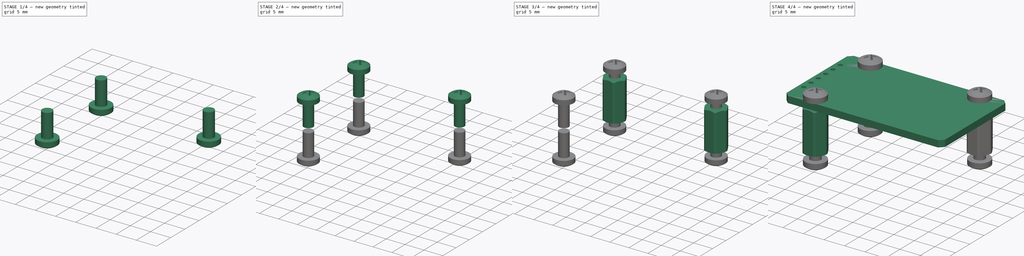
[diagram: build sequence overview — one tinted view per stage of 4, left to right]
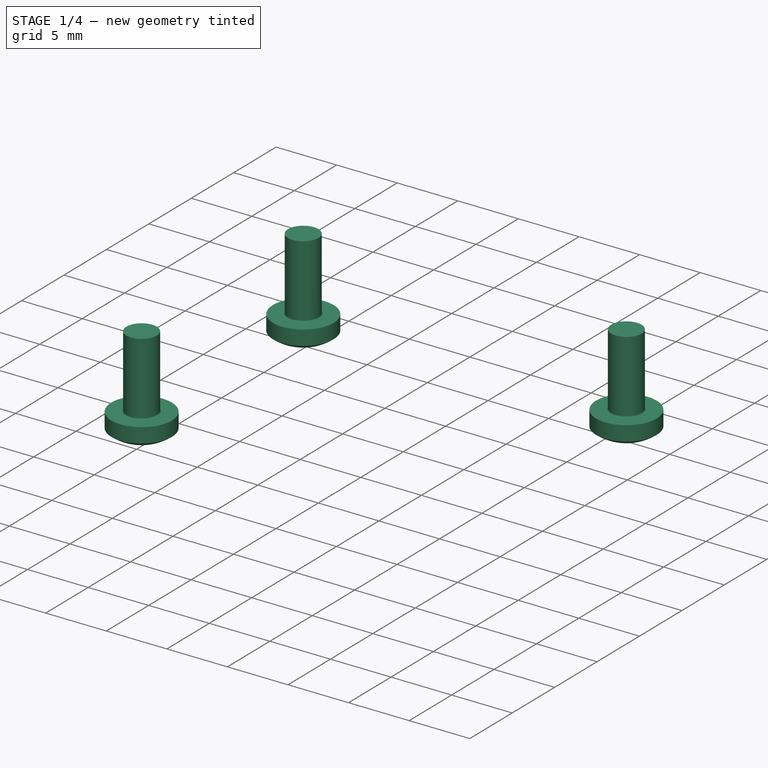
[diagram: stage 1 of 4 — iso view after this stage's code; geometry added in this stage tinted green]
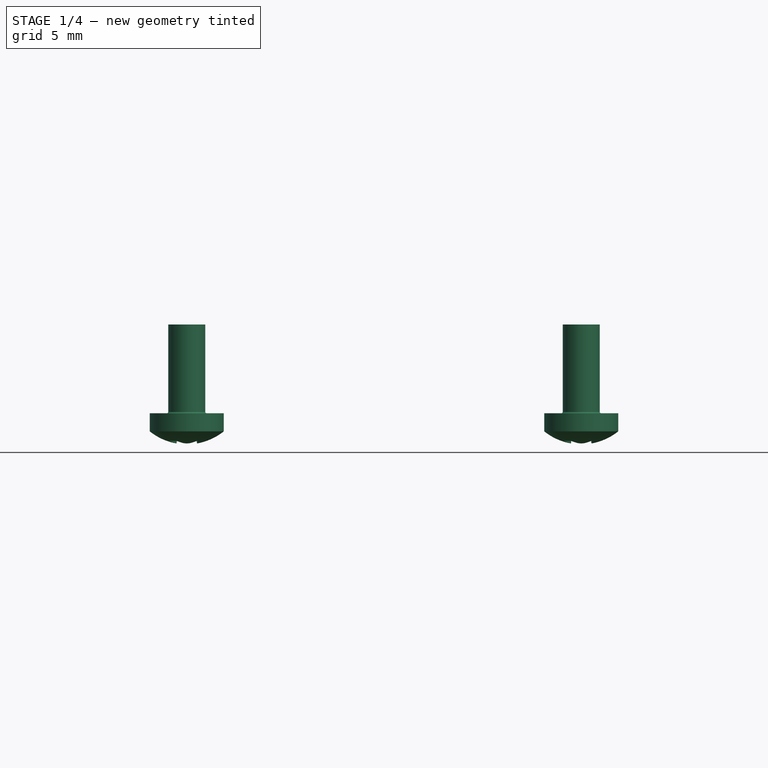
[diagram: stage 1 of 4 — front view after this stage's code; geometry added in this stage tinted green]
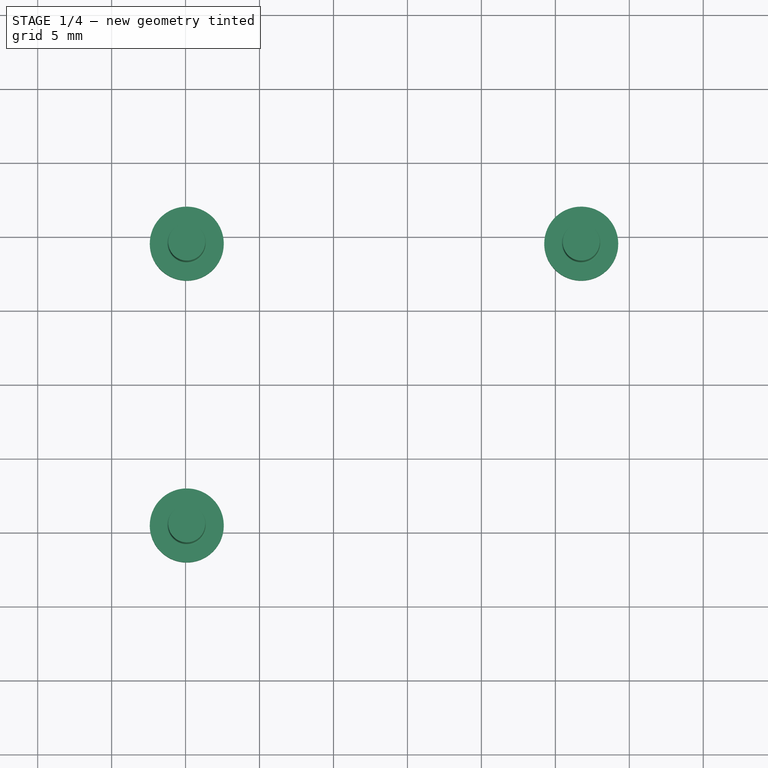
[diagram: stage 1 of 4 — top view after this stage's code; geometry added in this stage tinted green]
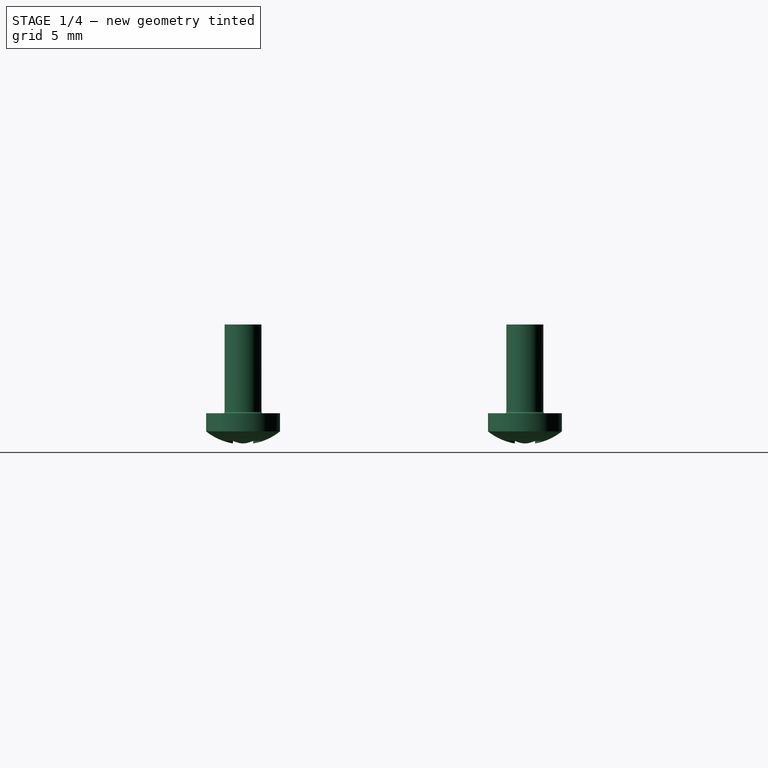
[diagram: stage 1 of 4 — right view after this stage's code; geometry added in this stage tinted green]
FCSTD DOCUMENT  (FreeCAD 0.18.4R)
Label: DS3231_module_MJ
License: All rights reserved
LicenseURL: http://en.wikipedia.org/wiki/All_rights_reserved
objects: Part::FeaturePython×9, Part::Feature×5, Sketcher::SketchObject×2, PartDesign::Pad×2, PartDesign::Body×1, App::Part×1
note: 21 computed .brp shape members not serialized (recipe doc carries the construction recipe); baked Part::Feature solids carry a one-line shape summary decoded from their .brp

FEATURE [Part::FeaturePython] Screw003  label="M2.5x6-Screw003"  # Fasteners workbench fastener (typed FeaturePython)
  Placement = pos=(5.08,-9.525,-11.6) rot=(0,1,0;3.14159rad)
  diameter = 3
  invert = false
  length = 3
  lengthCustom = 6
  matchOuter = false
  offset = 0
  thread = false
  type = 33
FEATURE [Part::FeaturePython] Screw004  label="M2.5x6-Screw006"  # Fasteners workbench fastener (typed FeaturePython)
  Placement = pos=(5.08,9.53,-11.6) rot=(0,1,0;3.14159rad)
  diameter = 3
  invert = false
  length = 3
  lengthCustom = 6
  matchOuter = false
  offset = 0
  thread = false
  type = 33
FEATURE [Part::FeaturePython] Screw005  label="M2.5x6-Screw007"  # Fasteners workbench fastener (typed FeaturePython)
  Placement = pos=(31.75,9.53,-11.6) rot=(0,1,0;3.14159rad)
  diameter = 3
  invert = false
  length = 3
  lengthCustom = 6
  matchOuter = false
  offset = 0
  thread = false
  type = 33
FEATURE [Part::Feature] Part__Feature014  label="PinSocket_1x06_P254mm_Vertical"
  Placement = pos=(0,6.35,-10) rot=(0,0,1;0rad)
  shape: bbox 2.54 x 15.24 x 10.1 mm, 196 faces (baked)
FEATURE [App::Part] Part  label="DS3231_module_assembly"
  Group = -> [Body,Part__Feature,Part__Feature001,Part__Feature002,Part__Feature003,PcbSpacer,PcbSpacer001,PcbSpacer002,Screw,Screw001,Screw002,Screw003,Screw004,Screw005,Part__Feature014]
  Origin = -> Origin001
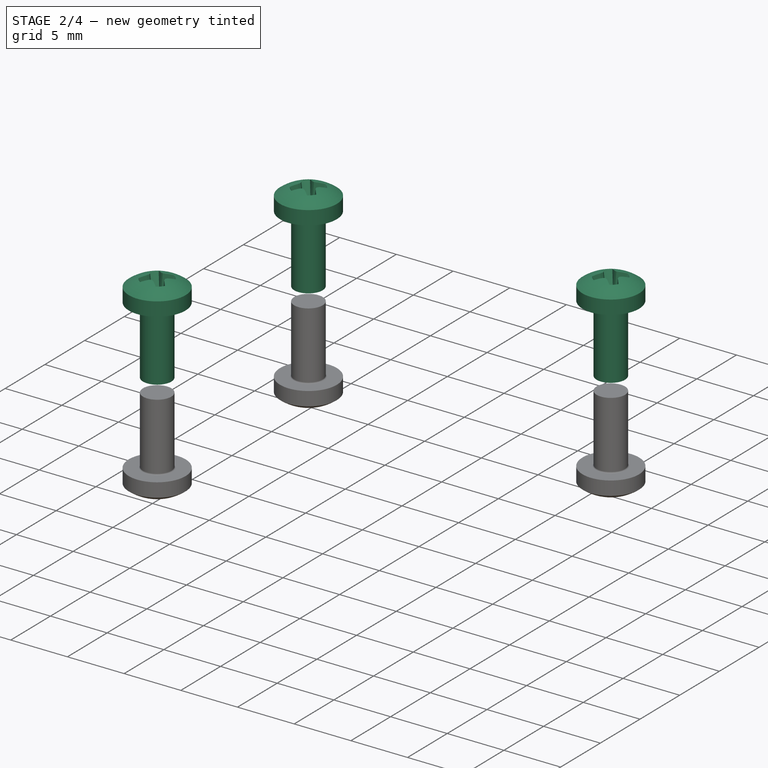
[diagram: stage 2 of 4 — iso view after this stage's code; geometry added in this stage tinted green]
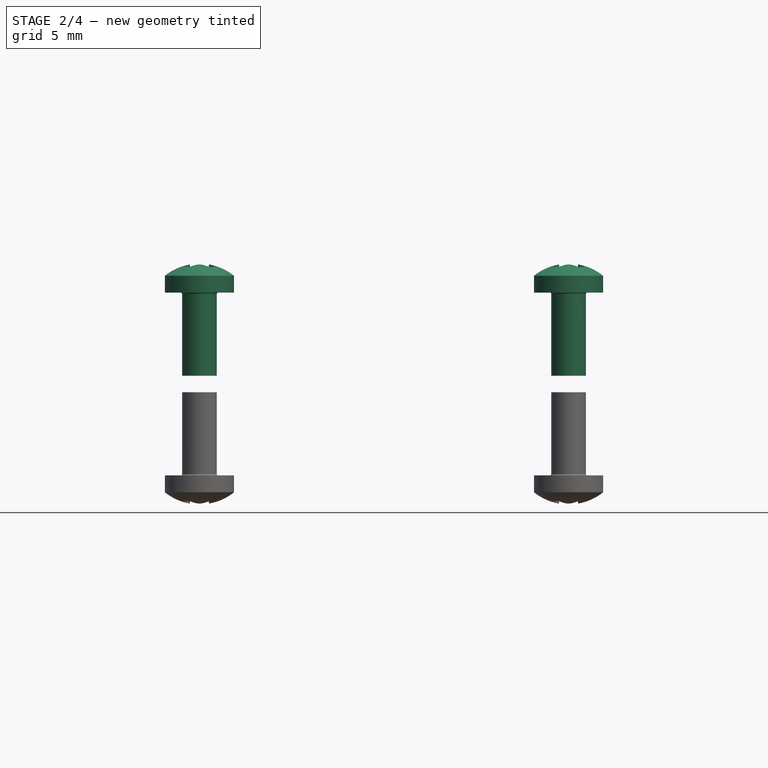
[diagram: stage 2 of 4 — front view after this stage's code; geometry added in this stage tinted green]
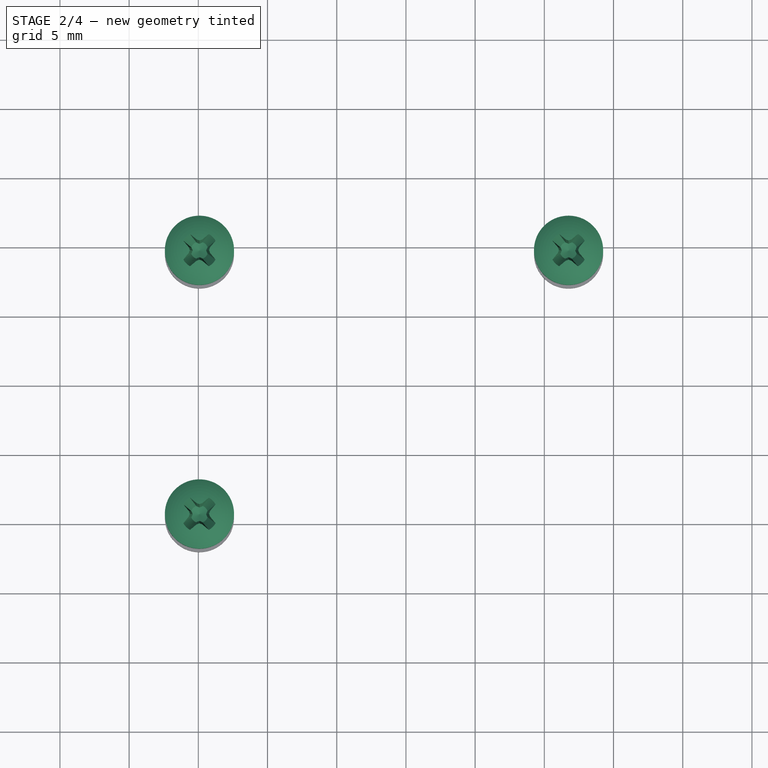
[diagram: stage 2 of 4 — top view after this stage's code; geometry added in this stage tinted green]
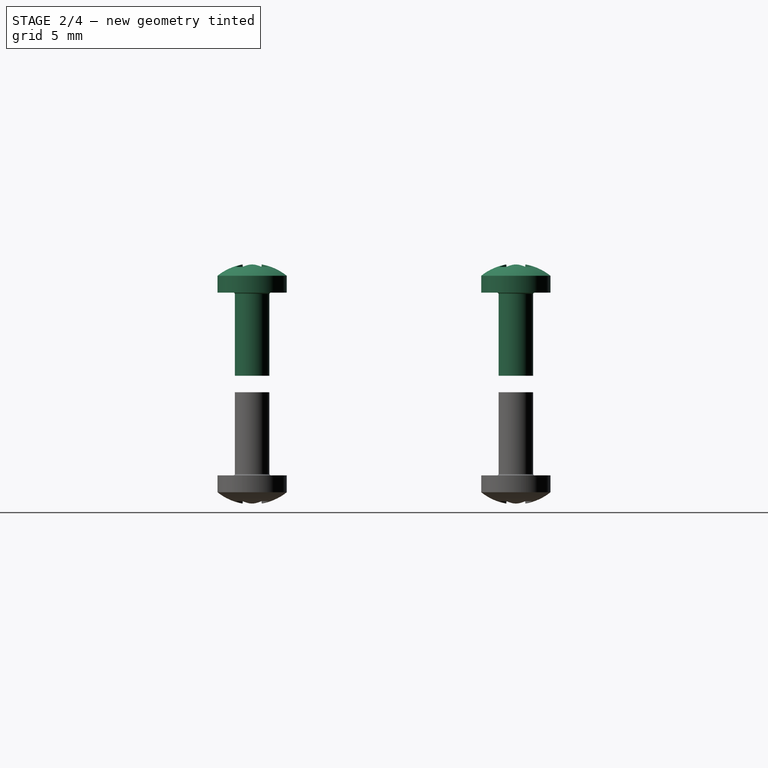
[diagram: stage 2 of 4 — right view after this stage's code; geometry added in this stage tinted green]
FEATURE [Part::FeaturePython] Screw  label="M2.5x6-Screw"  # Fasteners workbench fastener (typed FeaturePython)
  Placement = pos=(5.08,-9.525,1.6) rot=(0,0,1;0rad)
  diameter = 3
  invert = false
  length = 3
  lengthCustom = 6
  matchOuter = false
  offset = 0
  thread = false
  type = 33
FEATURE [Part::FeaturePython] Screw001  label="M2.5x6-Screw008"  # Fasteners workbench fastener (typed FeaturePython)
  Placement = pos=(5.08,9.53,1.6) rot=(0,0,1;0rad)
  diameter = 3
  invert = false
  length = 3
  lengthCustom = 6
  matchOuter = false
  offset = 0
  thread = false
  type = 33
FEATURE [Part::FeaturePython] Screw002  label="M2.5x6-Screw002"  # Fasteners workbench fastener (typed FeaturePython)
  Placement = pos=(31.75,9.53,1.6) rot=(0,0,1;0rad)
  diameter = 3
  invert = false
  length = 3
  lengthCustom = 6
  matchOuter = false
  offset = 0
  thread = false
  type = 33
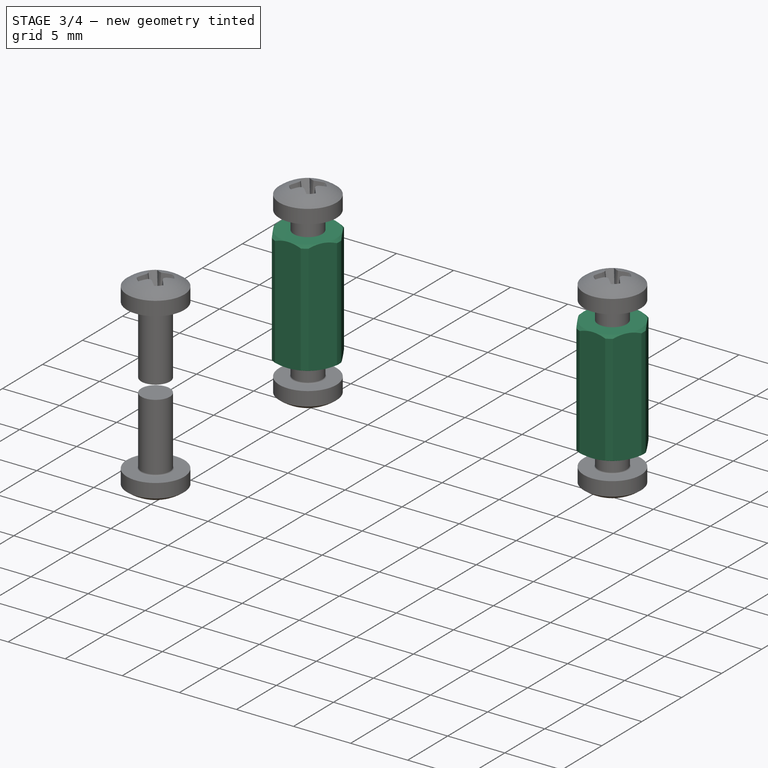
[diagram: stage 3 of 4 — iso view after this stage's code; geometry added in this stage tinted green]
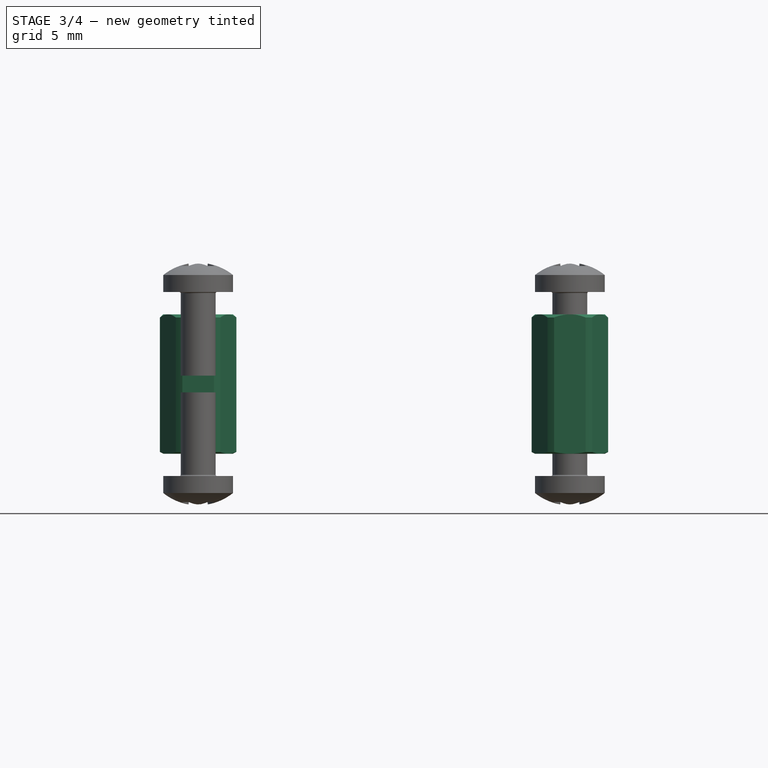
[diagram: stage 3 of 4 — front view after this stage's code; geometry added in this stage tinted green]
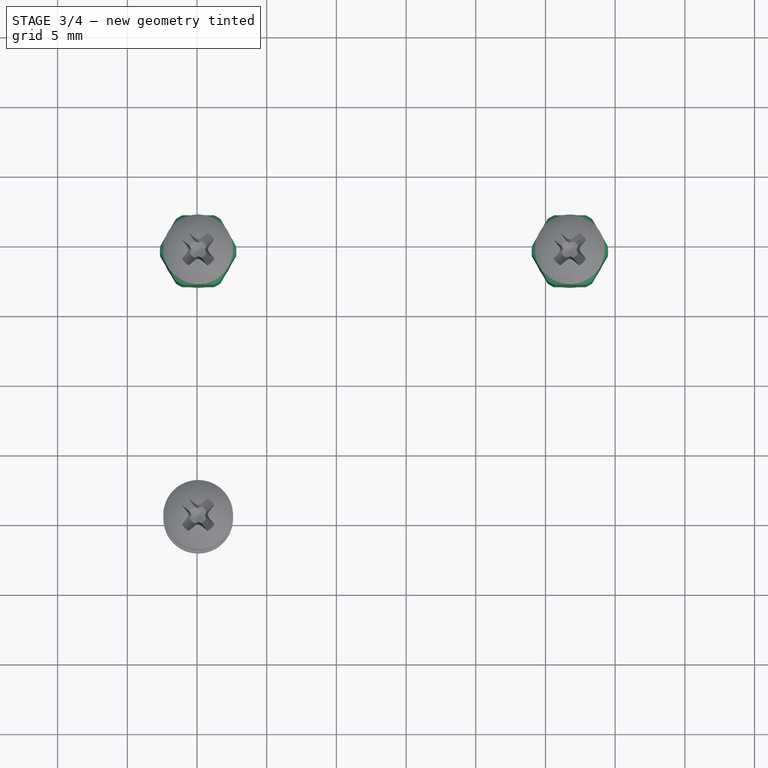
[diagram: stage 3 of 4 — top view after this stage's code; geometry added in this stage tinted green]
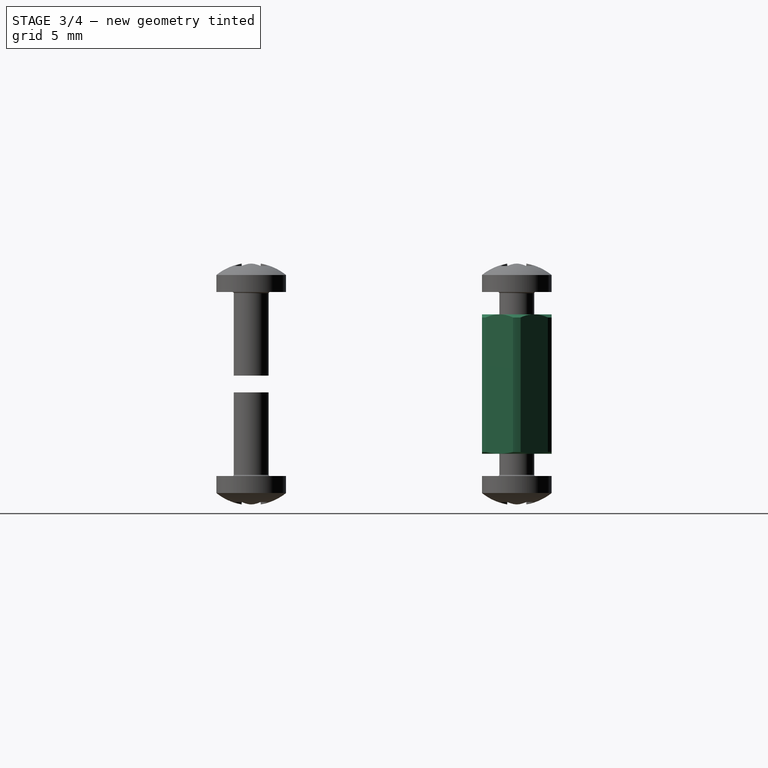
[diagram: stage 3 of 4 — right view after this stage's code; geometry added in this stage tinted green]
FEATURE [Part::FeaturePython] PcbSpacer001  label="M2.5x5x10-Spacer001"  # WARN: FeaturePython — macro-defined, semantics opaque (R4)
  Placement = pos=(5.08,9.53,0) rot=(0,1,0;3.14159rad)
  diameter = 1
  invert = false
  length = 1
  offset = 0
  width = 0
FEATURE [Part::FeaturePython] PcbSpacer002  label="M2.5x5x10-Spacer002"  # WARN: FeaturePython — macro-defined, semantics opaque (R4)
  Placement = pos=(31.75,9.53,0) rot=(0,1,0;3.14159rad)
  diameter = 1
  invert = false
  length = 1
  offset = 0
  width = 0
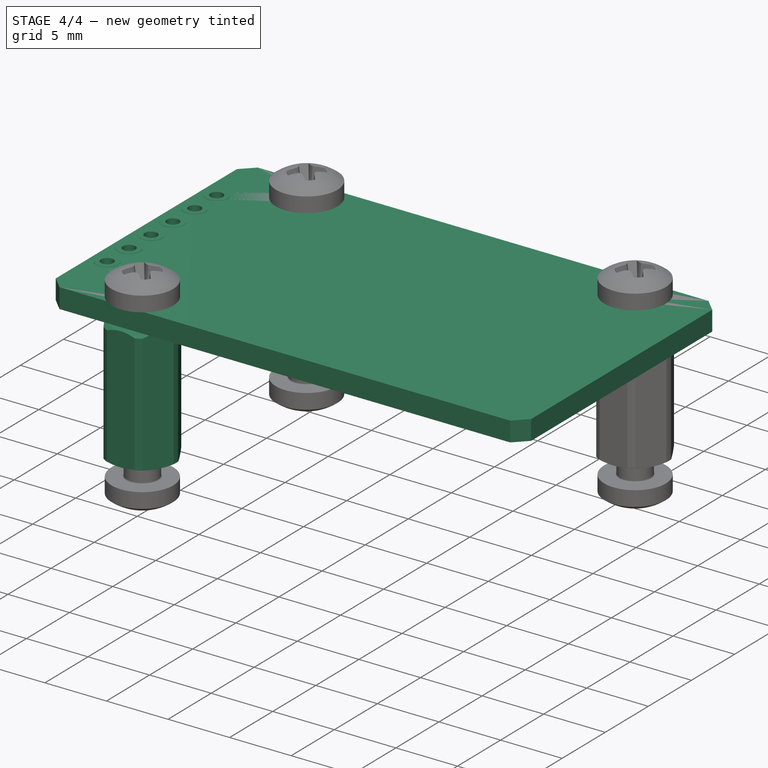
[diagram: stage 4 of 4 — iso view after this stage's code; geometry added in this stage tinted green]
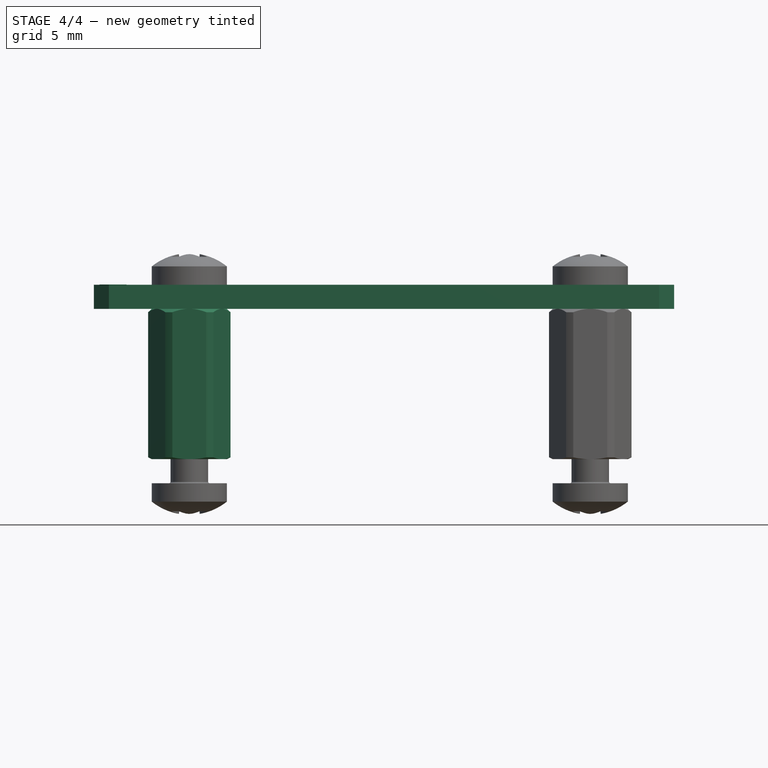
[diagram: stage 4 of 4 — front view after this stage's code; geometry added in this stage tinted green]
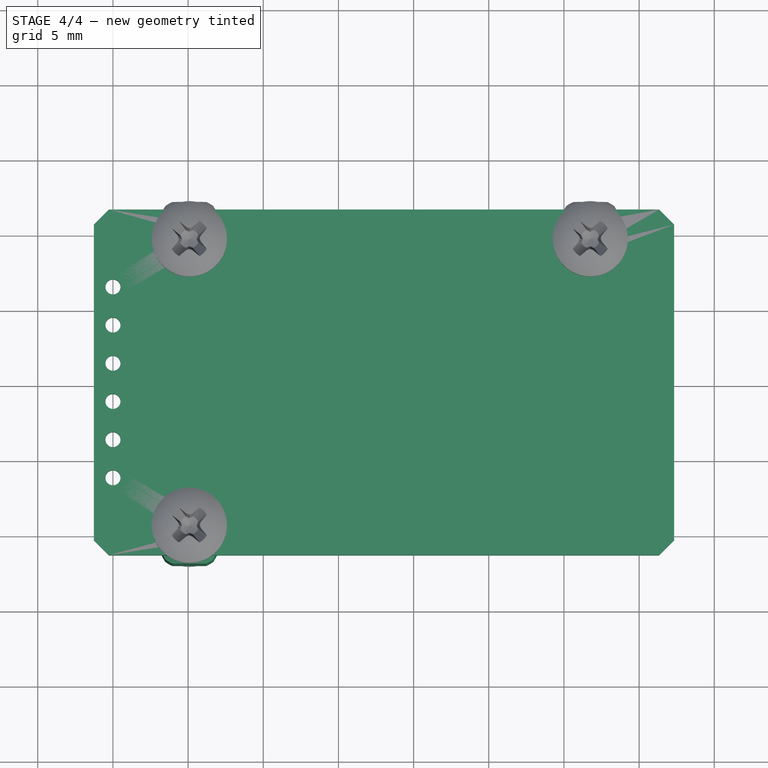
[diagram: stage 4 of 4 — top view after this stage's code; geometry added in this stage tinted green]
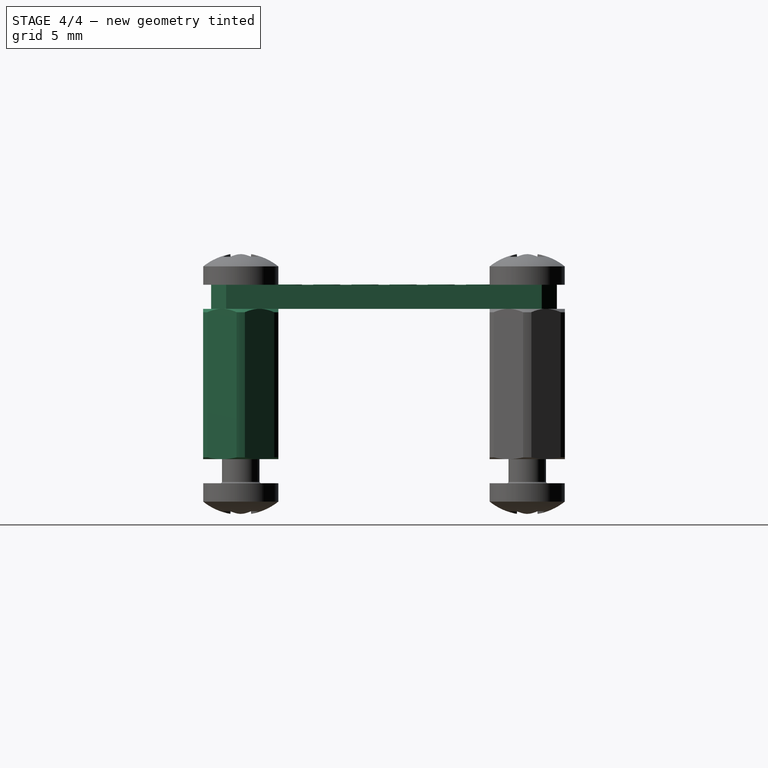
[diagram: stage 4 of 4 — right view after this stage's code; geometry added in this stage tinted green]
FEATURE [Sketcher::SketchObject] Sketch
  MapMode = 5
  Support = -> [XY_Plane]
  sketch-geometry (17):
    g0: LineSegment StartX=-0.27 StartY=11.5 StartZ=0 EndX=36.33 EndY=11.5 EndZ=0
    g1: LineSegment StartX=36.33 StartY=11.5 StartZ=0 EndX=37.33 EndY=10.5 EndZ=0
    g2: LineSegment StartX=37.33 StartY=10.5 StartZ=0 EndX=37.33 EndY=-10.5 EndZ=0
    g3: LineSegment StartX=37.33 StartY=-10.5 StartZ=0 EndX=36.33 EndY=-11.5 EndZ=0
    g4: LineSegment StartX=36.33 StartY=-11.5 StartZ=0 EndX=-0.27 EndY=-11.5 EndZ=0
    g5: LineSegment StartX=-0.27 StartY=-11.5 StartZ=0 EndX=-1.27 EndY=-10.5 EndZ=0
    g6: LineSegment StartX=-1.27 StartY=-10.5 StartZ=0 EndX=-1.27 EndY=10.5 EndZ=0
    g7: LineSegment StartX=-1.27 StartY=10.5 StartZ=0 EndX=-0.27 EndY=11.5 EndZ=0
    g8: Circle CenterX=5.08 CenterY=9.525 CenterZ=0 NormalX=0 NormalY=0 NormalZ=1 AngleXU=0 Radius=1.1
    g9: Circle CenterX=31.75 CenterY=9.525 CenterZ=0 NormalX=0 NormalY=0 NormalZ=1 AngleXU=0 Radius=1.1
    g10: Circle CenterX=5.08 CenterY=-9.525 CenterZ=0 NormalX=0 NormalY=0 NormalZ=1 AngleXU=0 Radius=1.1
    g11: Circle CenterX=0 CenterY=6.35 CenterZ=0 NormalX=0 NormalY=0 NormalZ=1 AngleXU=0 Radius=0.5
    g12: Circle CenterX=0 CenterY=3.81 CenterZ=0 NormalX=0 NormalY=0 NormalZ=1 AngleXU=0 Radius=0.5
    g13: Circle CenterX=0 CenterY=1.27 CenterZ=0 NormalX=0 NormalY=0 NormalZ=1 AngleXU=0 Radius=0.5
    g14: Circle CenterX=0 CenterY=-1.27 CenterZ=0 NormalX=0 NormalY=0 NormalZ=1 AngleXU=0 Radius=0.5
    g15: Circle CenterX=0 CenterY=-3.81 CenterZ=0 NormalX=0 NormalY=0 NormalZ=1 AngleXU=0 Radius=0.5
    g16: Circle CenterX=0 CenterY=-6.35 CenterZ=0 NormalX=0 NormalY=0 NormalZ=1 AngleXU=0 Radius=0.5
  constraints (48):
    c: Horizontal(g0)
    c: Coincident(g0,g1)
    c: Coincident(g1,g2)
    c: Vertical(g2)
    c: Coincident(g2,g3)
    c: Coincident(g3,g4)
    c: Horizontal(g4)
    c: Coincident(g4,g5)
    c: Coincident(g5,g6)
    c: Coincident(g6,g7)
    c: Coincident(g7,g0)
    c: Vertical(g6)
    c: Equal(g0,g4)
    c: Equal(g6,g2)
    c: Equal(g1,g7)
    c: Equal(g7,g5)
    c: Equal(g5,g3)
    c: DistanceX(g6,g1) = 38.6
    c: DistanceY(g6,g0) = 1
    c: DistanceX(g6,g0) = 1
    c: DistanceY(g3,g0) = 23
    c: Symmetric(g0,g3,g-1)
    c: DistanceX(g6,g-1) = 1.27
    c: Equal(g8,g9)
    c: Equal(g9,g10)
    c: Horizontal(g8,g9)
    c: DistanceX(g-1,g10) = 5.08
    c: DistanceX(g8,g9) = 26.67
    c: DistanceY(g10,g8) = 19.05
    c: Symmetric(g8,g10,g-1)
    c: Diameter(g8) = 2.2
    c: Equal(g16,g15)
    c: Equal(g15,g14)
    c: Equal(g14,g13)
    c: Equal(g13,g12)
    c: Equal(g12,g11)
    c: Vertical(g11,g12)
    c: Vertical(g12,g13)
    c: Vertical(g13,g14)
    c: Vertical(g14,g15)
    c: DistanceY(g12,g11) = 2.54
    c: DistanceY(g13,g12) = 2.54
    c: DistanceY(g14,g13) = 2.54
    c: DistanceY(g15,g14) = 2.54
    c: DistanceY(g16,g15) = 2.54
    c: Diameter(g11) = 1
    c: PointOnObject(g11,g-2)
    c: Symmetric(g11,g16,g-1)
FEATURE [PartDesign::Pad] Pad  label="PCB_1.6mm"
  Length = 1.6
  Length2 = 100
  Profile = -> Sketch
  Type = 0
FEATURE [Part::Feature] Part__Feature  label="PinHeader_1x06_P254mm_Vertical"
  Placement = pos=(0,-6.35,0) rot=(1,0,0;3.14159rad)
  shape: bbox 2.54 x 15.24 x 11.54 mm, 148 faces (baked)
FEATURE [Part::Feature] Part__Feature001  label="Battery Holder"
  Placement = pos=(18,0,0) rot=(0,1,0;3.14159rad)
  shape: bbox 23.8 x 21.8 x 8.43 mm, 326 faces (baked)
FEATURE [Sketcher::SketchObject] Sketch001
  MapMode = 5
  Placement = pos=(0,0,0) rot=(1,0,0;3.14159rad)
  Support = -> [Pad]
  sketch-geometry (12):
    g0: Circle CenterX=0 CenterY=6.35 CenterZ=0 NormalX=0 NormalY=0 NormalZ=1 AngleXU=0 Radius=0.5
    g1: Circle CenterX=0 CenterY=6.35 CenterZ=0 NormalX=0 NormalY=0 NormalZ=1 AngleXU=0 Radius=0.9
    g2: Circle CenterX=0 CenterY=3.81 CenterZ=0 NormalX=0 NormalY=0 NormalZ=1 AngleXU=0 Radius=0.5
    g3: Circle CenterX=0 CenterY=3.81 CenterZ=0 NormalX=0 NormalY=0 NormalZ=1 AngleXU=0 Radius=0.9
    g4: Circle CenterX=0 CenterY=1.27 CenterZ=0 NormalX=0 NormalY=0 NormalZ=1 AngleXU=0 Radius=0.5
    g5: Circle CenterX=0 CenterY=1.27 CenterZ=0 NormalX=0 NormalY=0 NormalZ=1 AngleXU=0 Radius=0.9
    g6: Circle CenterX=0 CenterY=-1.27 CenterZ=0 NormalX=0 NormalY=0 NormalZ=1 AngleXU=0 Radius=0.5
    g7: Circle CenterX=0 CenterY=-1.27 CenterZ=0 NormalX=0 NormalY=0 NormalZ=1 AngleXU=0 Radius=0.9
    g8: Circle CenterX=0 CenterY=-6.35 CenterZ=0 NormalX=0 NormalY=0 NormalZ=1 AngleXU=0 Radius=0.5
    g9: Circle CenterX=0 CenterY=-6.35 CenterZ=0 NormalX=0 NormalY=0 NormalZ=1 AngleXU=0 Radius=0.9
    g10: Circle CenterX=0 CenterY=-3.81 CenterZ=0 NormalX=0 NormalY=0 NormalZ=1 AngleXU=0 Radius=0.5
    g11: Circle CenterX=0 CenterY=-3.81 CenterZ=0 NormalX=0 NormalY=0 NormalZ=1 AngleXU=0 Radius=0.9
  constraints (29):
    c: Coincident(g1,g0)
    c: Coincident(g3,g2)
    c: Coincident(g5,g4)
    c: Coincident(g7,g6)
    c: Coincident(g11,g10)
    c: Coincident(g9,g8)
    c: Vertical(g0,g2)
    c: Vertical(g2,g4)
    c: Vertical(g4,g6)
    c: Vertical(g6,g10)
    c: Equal(g0,g2)
    c: Equal(g2,g4)
    c: Equal(g4,g6)
    c: Equal(g6,g10)
    c: Equal(g10,g8)
    c: Diameter(g0) = 1
    c: DistanceY(g2,g0) = 2.54
    c: DistanceY(g4,g2) = 2.54
    c: DistanceY(g6,g4) = 2.54
    c: DistanceY(g10,g6) = 2.54
    c: DistanceY(g8,g10) = 2.54
    c: Symmetric(g0,g8,g-1)
    c: Equal(g1,g3)
    c: Equal(g3,g5)
    c: Equal(g5,g7)
    c: Equal(g7,g11)
    c: Equal(g11,g9)
    c: Diameter(g1) = 1.8
    c: PointOnObject(g8,g-2)
FEATURE [PartDesign::Pad] Pad001
  BaseFeature = -> Pad
  Length = 1.62
  Length2 = 100
  Profile = -> Sketch001
  Reversed = true
  Type = 0
FEATURE [PartDesign::Body] Body  label="DS3231_module_with_backup_battery"
  Group = -> [Sketch,Pad,Sketch001,Pad001]
  Origin = -> Origin
  Tip = -> Pad001
FEATURE [Part::Feature] Part__Feature002  label="DS3231SN_SOIC_16W"
  Placement = pos=(18,4,1.6) rot=(0,0,1;1.5708rad)
  shape: bbox 10.3 x 10.3 x 2.75 mm, 276 faces (baked)
FEATURE [Part::Feature] Part__Feature003  label="24C32N_SOIC_8"
  Placement = pos=(15.5,-7,1.6) rot=(0,0,1;1.5708rad)
  shape: bbox 4.9 x 6 x 1.75 mm, 156 faces (baked)
FEATURE [Part::FeaturePython] PcbSpacer  label="M2.5x5x10-Spacer"  # WARN: FeaturePython — macro-defined, semantics opaque (R4)
  Placement = pos=(5.08,-9.525,0) rot=(0,1,0;3.14159rad)
  diameter = 1
  invert = false
  length = 1
  offset = 0
  width = 0
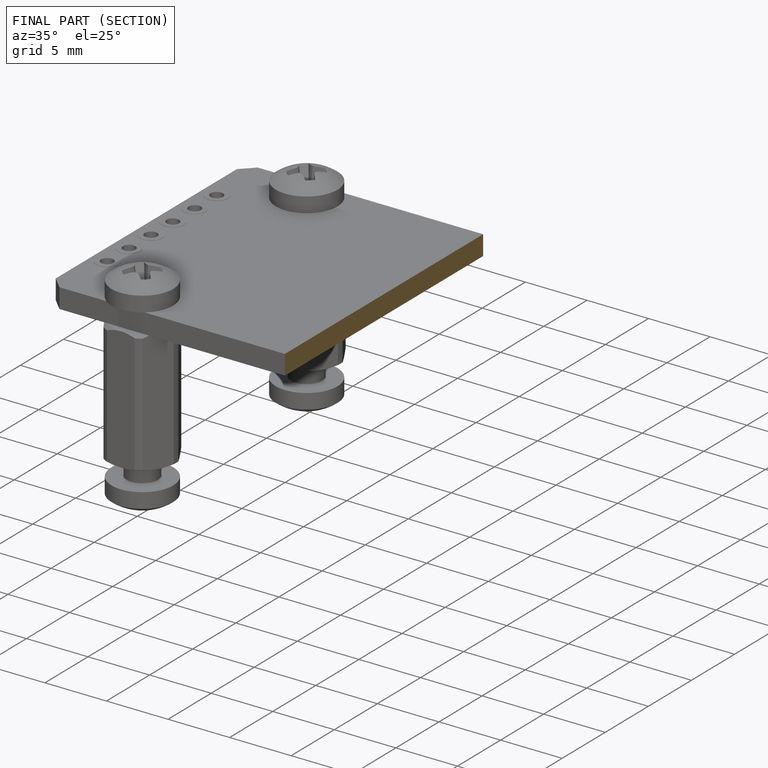
[diagram: finished part — half-section view (interior)]
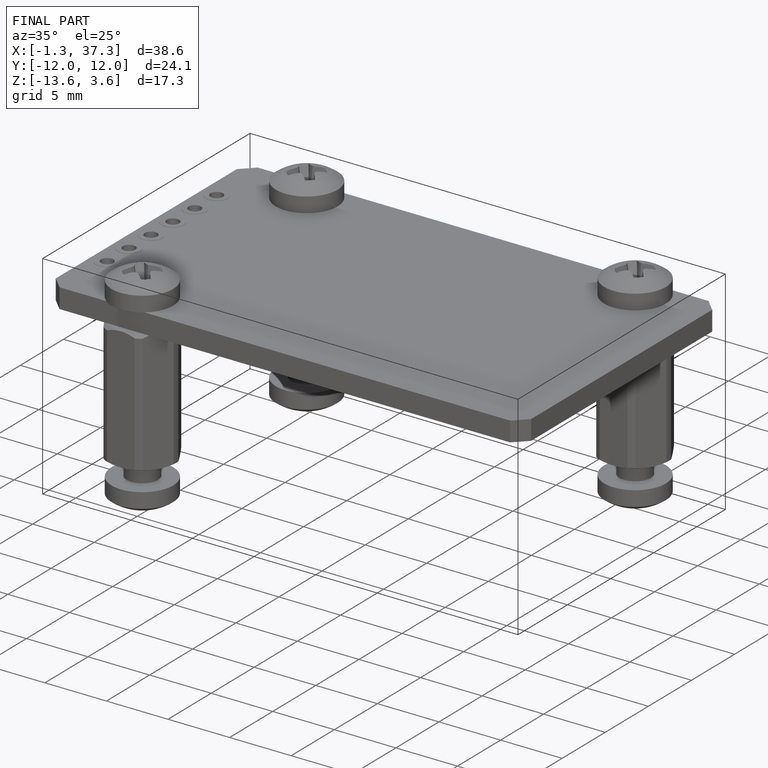
[diagram: finished part — iso view with bounding-box wireframe]
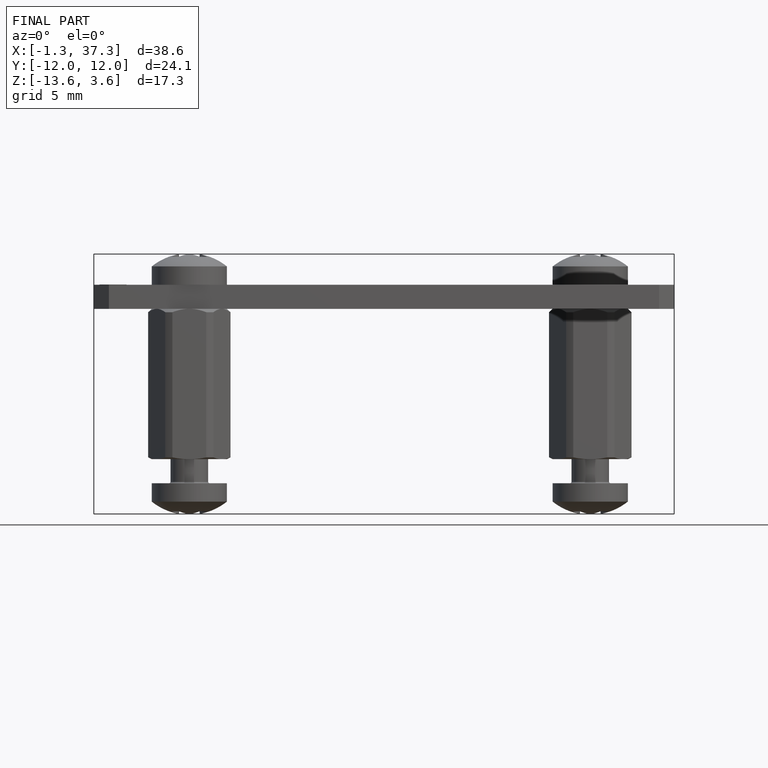
[diagram: finished part — front view with bounding-box wireframe]
